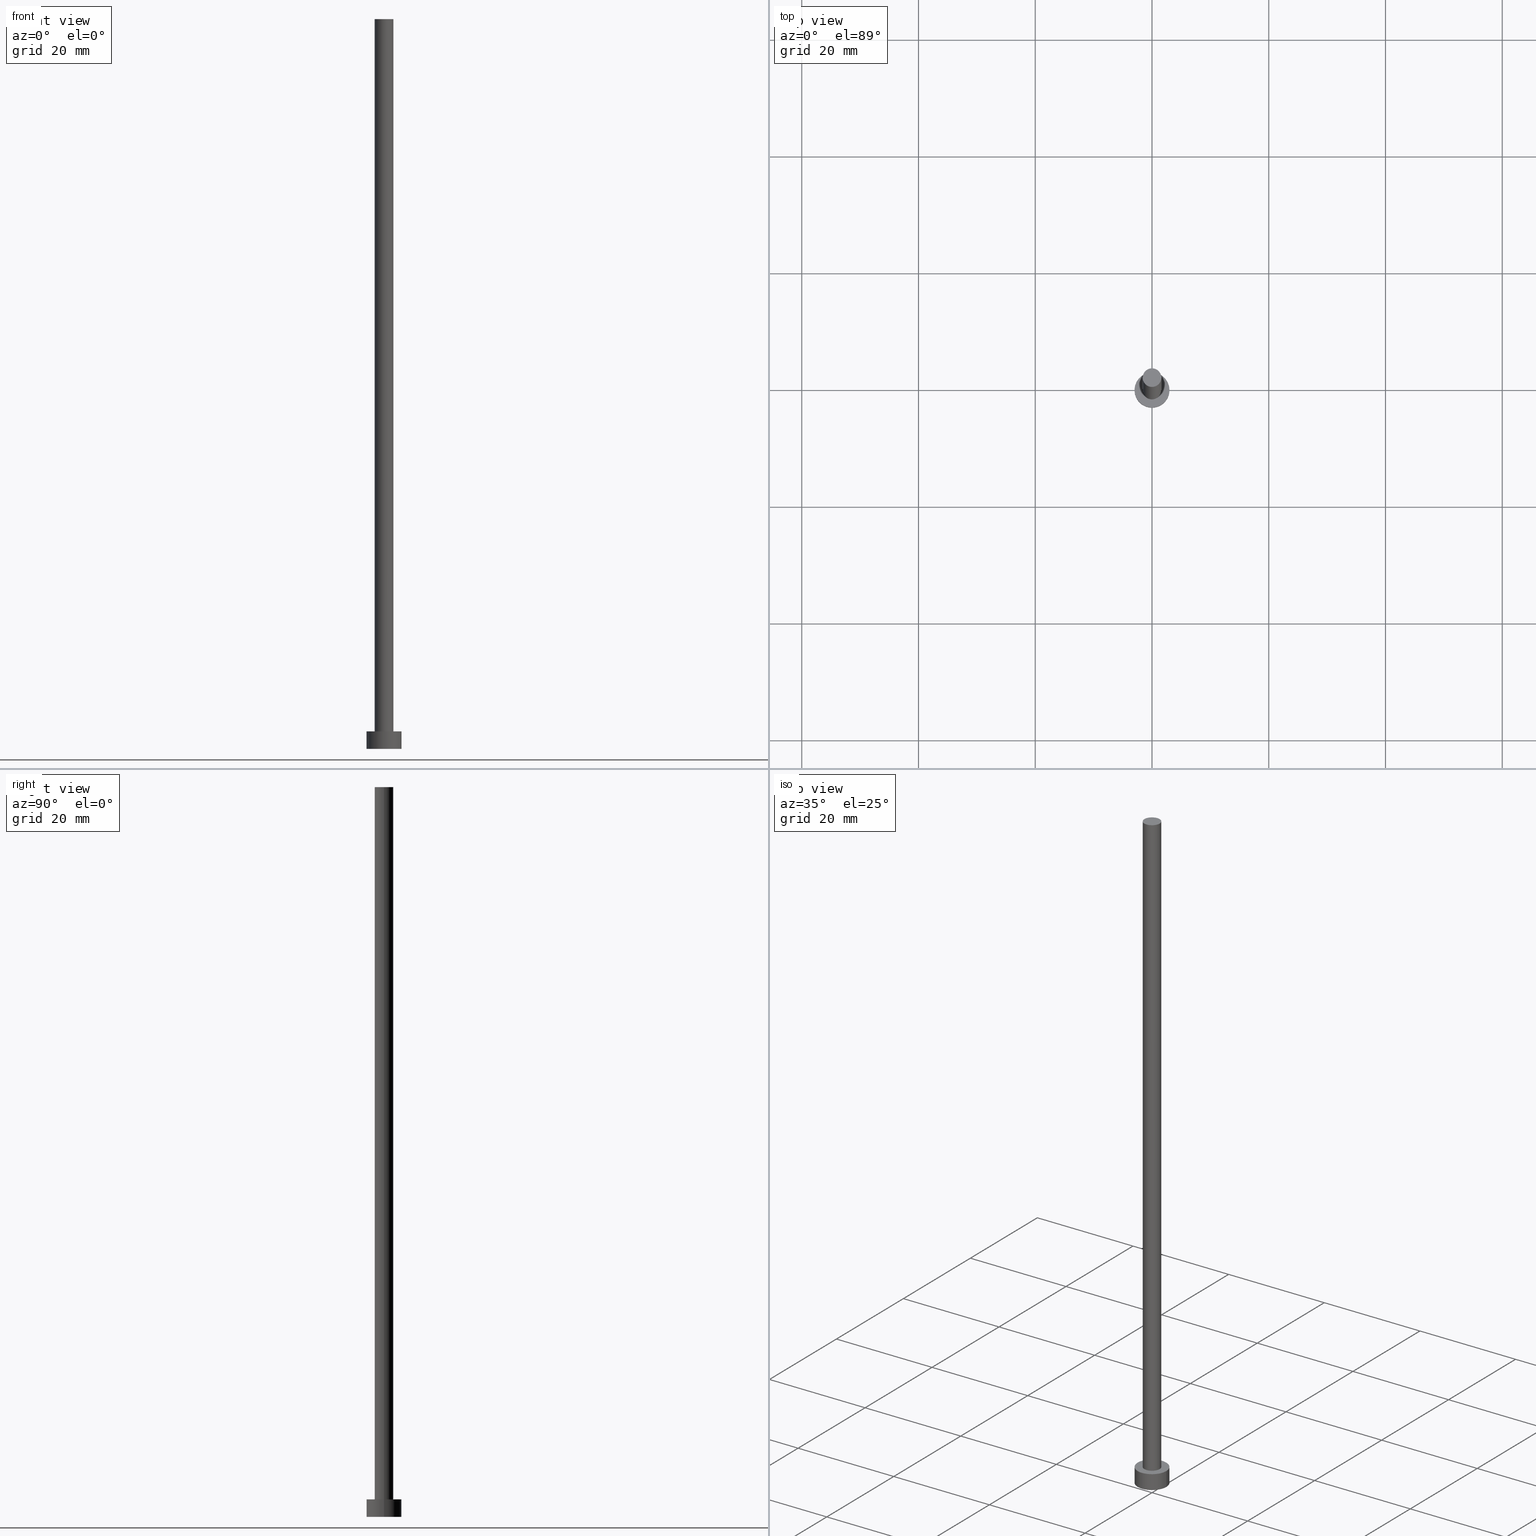
[diagram: canonical four-view strip — front | top / right | iso, engineering-drawing reading convention]
A machine part, canonical four-view strip (front | top / right | iso — engineering-drawing reading convention). The complete STEP part file that produces these views, byte-faithful:
ISO-10303-21;
HEADER;
FILE_DESCRIPTION (( 'STEP AP203' ),
    '1' );
FILE_NAME ('6691.STEP',
    '2023-02-13T14:25:49',
    ( '' ),
    ( '' ),
    'SwSTEP 2.0',
    'SolidWorks 2019',
    '' );
FILE_SCHEMA (( 'CONFIG_CONTROL_DESIGN' ));
ENDSEC;

DATA;
#1 = ADVANCED_FACE ( 'NONE', ( #181 ), #108, .T. ) ;
#2 = DIRECTION ( 'NONE',  ( 0.000000000000000000, 0.000000000000000000, 1.000000000000000000 ) ) ;
#3 = CIRCLE ( 'NONE', #38, 1.600000000000000089 ) ;
#4 = CARTESIAN_POINT ( 'NONE',  ( 1.600000000000000089, 1.959434878635764737E-16, 3.000000000000000000 ) ) ;
#5 = DATE_TIME_ROLE ( 'creation_date' ) ;
#6 = PERSON_AND_ORGANIZATION ( #99, #244 ) ;
#7 = APPLICATION_CONTEXT ( 'configuration controlled 3d designs of mechanical parts and assemblies' ) ;
#8 = VERTEX_POINT ( 'NONE', #4 ) ;
#9 = CARTESIAN_POINT ( 'NONE',  ( 0.000000000000000000, 0.000000000000000000, 3.000000000000000000 ) ) ;
#10 = DIRECTION ( 'NONE',  ( 1.000000000000000000, 0.000000000000000000, 0.000000000000000000 ) ) ;
#11 = AXIS2_PLACEMENT_3D ( 'NONE', #219, #122, #198 ) ;
#12 = LOCAL_TIME ( 15, 25, 49.00000000000000000, #141 ) ;
#13 = EDGE_CURVE ( 'NONE', #76, #68, #164, .T. ) ;
#14 = ORIENTED_EDGE ( 'NONE', *, *, #199, .F. ) ;
#15 = ORIENTED_EDGE ( 'NONE', *, *, #157, .T. ) ;
#16 = VECTOR ( 'NONE', #116, 1000.000000000000000 ) ;
#17 = APPLICATION_PROTOCOL_DEFINITION ( 'international standard', 'config_control_design', 1994, #85 ) ;
#18 = ORIENTED_EDGE ( 'NONE', *, *, #109, .F. ) ;
#19 = DIRECTION ( 'NONE',  ( -0.000000000000000000, -0.000000000000000000, -1.000000000000000000 ) ) ;
#20 = ORIENTED_EDGE ( 'NONE', *, *, #103, .F. ) ;
#21 = CIRCLE ( 'NONE', #195, 3.000000000000000444 ) ;
#22 = APPROVAL ( #87, 'NEUR�EN�' ) ;
#23 = PERSON_AND_ORGANIZATION ( #99, #244 ) ;
#24 = AXIS2_PLACEMENT_3D ( 'NONE', #83, #19, #25 ) ;
#25 = DIRECTION ( 'NONE',  ( -1.000000000000000000, 0.000000000000000000, 0.000000000000000000 ) ) ;
#26 = CALENDAR_DATE ( 2023, 13, 2 ) ;
#27 = PLANE ( 'NONE',  #167 ) ;
#28 = DIRECTION ( 'NONE',  ( 0.000000000000000000, 0.000000000000000000, 1.000000000000000000 ) ) ;
#29 = SHAPE_DEFINITION_REPRESENTATION ( #80, #161 ) ;
#30 = CARTESIAN_POINT ( 'NONE',  ( 0.000000000000000000, 0.000000000000000000, 3.000000000000000000 ) ) ;
#31 = ADVANCED_FACE ( 'NONE', ( #197 ), #37, .T. ) ;
#32 = LINE ( 'NONE', #206, #16 ) ;
#33 = CIRCLE ( 'NONE', #60, 3.000000000000000444 ) ;
#34 = FACE_OUTER_BOUND ( 'NONE', #120, .T. ) ;
#35 = EDGE_LOOP ( 'NONE', ( #79, #150 ) ) ;
#36 = AXIS2_PLACEMENT_3D ( 'NONE', #106, #182, #81 ) ;
#37 = CYLINDRICAL_SURFACE ( 'NONE', #11, 1.600000000000000089 ) ;
#38 = AXIS2_PLACEMENT_3D ( 'NONE', #49, #72, #245 ) ;
#39 = CIRCLE ( 'NONE', #192, 3.000000000000000444 ) ;
#40 = VECTOR ( 'NONE', #224, 1000.000000000000000 ) ;
#41 = PERSON_AND_ORGANIZATION_ROLE ( 'design_supplier' ) ;
#42 = DIRECTION ( 'NONE',  ( 0.000000000000000000, 0.000000000000000000, 1.000000000000000000 ) ) ;
#43 = CARTESIAN_POINT ( 'NONE',  ( 3.000000000000000444, 3.673940397442060361E-16, 0.000000000000000000 ) ) ;
#44 = CARTESIAN_POINT ( 'NONE',  ( 0.000000000000000000, 0.000000000000000000, 3.000000000000000000 ) ) ;
#45 = APPROVAL ( #88, 'NEUR�EN�' ) ;
#46 = DATE_TIME_ROLE ( 'classification_date' ) ;
#47 = CYLINDRICAL_SURFACE ( 'NONE', #95, 3.000000000000000444 ) ;
#48 = ADVANCED_FACE ( 'NONE', ( #184 ), #214, .T. ) ;
#49 = CARTESIAN_POINT ( 'NONE',  ( 0.000000000000000000, 0.000000000000000000, 125.0000000000000000 ) ) ;
#50 = AXIS2_PLACEMENT_3D ( 'NONE', #30, #63, #163 ) ;
#51 = CC_DESIGN_PERSON_AND_ORGANIZATION_ASSIGNMENT ( #236, #139, ( #235 ) ) ;
#52 = UNCERTAINTY_MEASURE_WITH_UNIT (LENGTH_MEASURE( 1.000000000000000082E-05 ), #174, 'distance_accuracy_value', 'NONE');
#53 = ADVANCED_FACE ( 'NONE', ( #158 ), #57, .F. ) ;
#54 = APPROVAL_PERSON_ORGANIZATION ( #86, #45, #166 ) ;
#55 = SECURITY_CLASSIFICATION ( '', '', #89 ) ;
#56 = LINE ( 'NONE', #138, #179 ) ;
#57 = PLANE ( 'NONE',  #213 ) ;
#58 = DIRECTION ( 'NONE',  ( 1.000000000000000000, 0.000000000000000000, 0.000000000000000000 ) ) ;
#59 = APPROVAL_DATE_TIME ( #187, #132 ) ;
#60 = AXIS2_PLACEMENT_3D ( 'NONE', #44, #42, #168 ) ;
#61 = CARTESIAN_POINT ( 'NONE',  ( 0.000000000000000000, 0.000000000000000000, 3.000000000000000000 ) ) ;
#62 = COORDINATED_UNIVERSAL_TIME_OFFSET ( 1, 0, .AHEAD. ) ;
#63 = DIRECTION ( 'NONE',  ( 0.000000000000000000, 0.000000000000000000, 1.000000000000000000 ) ) ;
#64 = APPROVAL_ROLE ( '' ) ;
#65 = CC_DESIGN_DATE_AND_TIME_ASSIGNMENT ( #221, #46, ( #55 ) ) ;
#66 = FACE_OUTER_BOUND ( 'NONE', #119, .T. ) ;
#67 = APPROVAL_PERSON_ORGANIZATION ( #90, #132, #64 ) ;
#68 = VERTEX_POINT ( 'NONE', #232 ) ;
#69 = PRODUCT_RELATED_PRODUCT_CATEGORY ( 'detail', '', ( #169 ) ) ;
#70 = CARTESIAN_POINT ( 'NONE',  ( -3.000000000000000444, 0.000000000000000000, 3.000000000000000000 ) ) ;
#71 = MECHANICAL_CONTEXT ( 'NONE', #85, 'mechanical' ) ;
#72 = DIRECTION ( 'NONE',  ( 0.000000000000000000, 0.000000000000000000, 1.000000000000000000 ) ) ;
#73 = EDGE_CURVE ( 'NONE', #76, #107, #56, .T. ) ;
#74 =( NAMED_UNIT ( * ) SI_UNIT ( $, .STERADIAN. ) SOLID_ANGLE_UNIT ( ) );
#75 = ORIENTED_EDGE ( 'NONE', *, *, #13, .F. ) ;
#76 = VERTEX_POINT ( 'NONE', #237 ) ;
#77 = AXIS2_PLACEMENT_3D ( 'NONE', #137, #212, #156 ) ;
#78 = VERTEX_POINT ( 'NONE', #242 ) ;
#79 = ORIENTED_EDGE ( 'NONE', *, *, #100, .F. ) ;
#80 = PRODUCT_DEFINITION_SHAPE ( 'NONE', 'NONE',  #248 ) ;
#81 = DIRECTION ( 'NONE',  ( 1.000000000000000000, 0.000000000000000000, 0.000000000000000000 ) ) ;
#82 = EDGE_LOOP ( 'NONE', ( #178, #194, #153, #255 ) ) ;
#83 = CARTESIAN_POINT ( 'NONE',  ( 0.000000000000000000, 0.000000000000000000, 3.000000000000000000 ) ) ;
#84 = DATE_AND_TIME ( #26, #12 ) ;
#85 = APPLICATION_CONTEXT ( 'configuration controlled 3d designs of mechanical parts and assemblies' ) ;
#86 = PERSON_AND_ORGANIZATION ( #99, #244 ) ;
#87 = APPROVAL_STATUS ( 'not_yet_approved' ) ;
#88 = APPROVAL_STATUS ( 'not_yet_approved' ) ;
#89 = SECURITY_CLASSIFICATION_LEVEL ( 'unclassified' ) ;
#90 = PERSON_AND_ORGANIZATION ( #99, #244 ) ;
#91 = DIRECTION ( 'NONE',  ( 1.000000000000000000, 0.000000000000000000, -0.000000000000000000 ) ) ;
#92 = EDGE_CURVE ( 'NONE', #121, #78, #112, .T. ) ;
#93 = DIRECTION ( 'NONE',  ( -0.000000000000000000, -0.000000000000000000, -1.000000000000000000 ) ) ;
#94 = ADVANCED_FACE ( 'NONE', ( #66 ), #47, .T. ) ;
#95 = AXIS2_PLACEMENT_3D ( 'NONE', #9, #147, #189 ) ;
#96 = AXIS2_PLACEMENT_3D ( 'NONE', #203, #205, #140 ) ;
#97 = CC_DESIGN_APPROVAL ( #45, ( #235 ) ) ;
#98 = ORIENTED_EDGE ( 'NONE', *, *, #103, .T. ) ;
#99 = PERSON ( 'NEUR�EN�', 'NEUR�EN�', 'NEUR�EN�', ('NEUR�EN�'), ('NEUR�EN�'), ('NEUR�EN�') ) ;
#100 = EDGE_CURVE ( 'NONE', #78, #188, #39, .T. ) ;
#101 = ORIENTED_EDGE ( 'NONE', *, *, #148, .T. ) ;
#102 = LOCAL_TIME ( 15, 25, 49.00000000000000000, #218 ) ;
#103 = EDGE_CURVE ( 'NONE', #230, #188, #171, .T. ) ;
#104 = ORIENTED_EDGE ( 'NONE', *, *, #183, .F. ) ;
#105 = CARTESIAN_POINT ( 'NONE',  ( 0.000000000000000000, 0.000000000000000000, 0.000000000000000000 ) ) ;
#106 = CARTESIAN_POINT ( 'NONE',  ( 0.000000000000000000, 0.000000000000000000, 0.000000000000000000 ) ) ;
#107 = VERTEX_POINT ( 'NONE', #222 ) ;
#108 = CYLINDRICAL_SURFACE ( 'NONE', #77, 1.600000000000000089 ) ;
#109 = EDGE_CURVE ( 'NONE', #121, #230, #33, .T. ) ;
#110 = COORDINATED_UNIVERSAL_TIME_OFFSET ( 1, 0, .AHEAD. ) ;
#111 = CC_DESIGN_APPROVAL ( #132, ( #248 ) ) ;
#112 = LINE ( 'NONE', #70, #40 ) ;
#113 = CALENDAR_DATE ( 2023, 13, 2 ) ;
#114 = PERSON_AND_ORGANIZATION ( #99, #244 ) ;
#115 = DIRECTION ( 'NONE',  ( 1.000000000000000000, 0.000000000000000000, 0.000000000000000000 ) ) ;
#116 = DIRECTION ( 'NONE',  ( -0.000000000000000000, -0.000000000000000000, -1.000000000000000000 ) ) ;
#117 = CIRCLE ( 'NONE', #96, 1.600000000000000089 ) ;
#118 = CLOSED_SHELL ( 'NONE', ( #31, #94, #48, #208, #53, #1, #249 ) ) ;
#119 = EDGE_LOOP ( 'NONE', ( #14, #98, #101, #216 ) ) ;
#120 = EDGE_LOOP ( 'NONE', ( #234, #15 ) ) ;
#121 = VERTEX_POINT ( 'NONE', #129 ) ;
#122 = DIRECTION ( 'NONE',  ( -0.000000000000000000, -0.000000000000000000, -1.000000000000000000 ) ) ;
#123 = EDGE_LOOP ( 'NONE', ( #104, #136 ) ) ;
#124 = APPROVAL_STATUS ( 'not_yet_approved' ) ;
#125 = ORIENTED_EDGE ( 'NONE', *, *, #109, .T. ) ;
#126 = APPLICATION_PROTOCOL_DEFINITION ( 'international standard', 'config_control_design', 1994, #7 ) ;
#127 = FACE_BOUND ( 'NONE', #123, .T. ) ;
#128 = COORDINATED_UNIVERSAL_TIME_OFFSET ( 1, 0, .AHEAD. ) ;
#129 = CARTESIAN_POINT ( 'NONE',  ( -3.000000000000000444, 0.000000000000000000, 3.000000000000000000 ) ) ;
#130 = PERSON_AND_ORGANIZATION_ROLE ( 'design_owner' ) ;
#131 = DIRECTION ( 'NONE',  ( 0.000000000000000000, 0.000000000000000000, 1.000000000000000000 ) ) ;
#132 = APPROVAL ( #124, 'NEUR�EN�' ) ;
#133 = AXIS2_PLACEMENT_3D ( 'NONE', #240, #134, #10 ) ;
#134 = DIRECTION ( 'NONE',  ( 0.000000000000000000, 0.000000000000000000, 1.000000000000000000 ) ) ;
#135 = CC_DESIGN_PERSON_AND_ORGANIZATION_ASSIGNMENT ( #114, #145, ( #248 ) ) ;
#136 = ORIENTED_EDGE ( 'NONE', *, *, #154, .F. ) ;
#137 = CARTESIAN_POINT ( 'NONE',  ( 0.000000000000000000, 0.000000000000000000, 125.0000000000000000 ) ) ;
#138 = CARTESIAN_POINT ( 'NONE',  ( -1.600000000000000089, 0.000000000000000000, 125.0000000000000000 ) ) ;
#139 = PERSON_AND_ORGANIZATION_ROLE ( 'creator' ) ;
#140 = DIRECTION ( 'NONE',  ( 1.000000000000000000, 0.000000000000000000, 0.000000000000000000 ) ) ;
#141 = COORDINATED_UNIVERSAL_TIME_OFFSET ( 1, 0, .AHEAD. ) ;
#142 = ORIENTED_EDGE ( 'NONE', *, *, #199, .T. ) ;
#143 = CALENDAR_DATE ( 2023, 13, 2 ) ;
#144 = DIRECTION ( 'NONE',  ( 0.000000000000000000, 0.000000000000000000, 1.000000000000000000 ) ) ;
#145 = PERSON_AND_ORGANIZATION_ROLE ( 'creator' ) ;
#146 = DIRECTION ( 'NONE',  ( -0.000000000000000000, -0.000000000000000000, -1.000000000000000000 ) ) ;
#147 = DIRECTION ( 'NONE',  ( -0.000000000000000000, -0.000000000000000000, -1.000000000000000000 ) ) ;
#148 = EDGE_CURVE ( 'NONE', #188, #78, #207, .T. ) ;
#149 = DIRECTION ( 'NONE',  ( 0.000000000000000000, 0.000000000000000000, 1.000000000000000000 ) ) ;
#150 = ORIENTED_EDGE ( 'NONE', *, *, #148, .F. ) ;
#151 = MANIFOLD_SOLID_BREP ( 'P�idat vysunut�m3', #118 ) ;
#152 = CARTESIAN_POINT ( 'NONE',  ( 0.000000000000000000, 0.000000000000000000, 125.0000000000000000 ) ) ;
#153 = ORIENTED_EDGE ( 'NONE', *, *, #154, .T. ) ;
#154 = EDGE_CURVE ( 'NONE', #8, #107, #117, .T. ) ;
#155 = DIRECTION ( 'NONE',  ( 1.000000000000000000, 0.000000000000000000, -0.000000000000000000 ) ) ;
#156 = DIRECTION ( 'NONE',  ( -1.000000000000000000, 0.000000000000000000, 0.000000000000000000 ) ) ;
#157 = EDGE_CURVE ( 'NONE', #68, #76, #3, .T. ) ;
#158 = FACE_OUTER_BOUND ( 'NONE', #35, .T. ) ;
#159 = APPROVAL_ROLE ( '' ) ;
#160 = CIRCLE ( 'NONE', #50, 1.600000000000000089 ) ;
#161 = ADVANCED_BREP_SHAPE_REPRESENTATION ( '6691', ( #151, #36 ), #250 ) ;
#162 = APPROVAL_DATE_TIME ( #185, #45 ) ;
#163 = DIRECTION ( 'NONE',  ( 1.000000000000000000, 0.000000000000000000, 0.000000000000000000 ) ) ;
#164 = CIRCLE ( 'NONE', #246, 1.600000000000000089 ) ;
#165 = PERSON_AND_ORGANIZATION ( #99, #244 ) ;
#166 = APPROVAL_ROLE ( '' ) ;
#167 = AXIS2_PLACEMENT_3D ( 'NONE', #201, #28, #91 ) ;
#168 = DIRECTION ( 'NONE',  ( 1.000000000000000000, 0.000000000000000000, 0.000000000000000000 ) ) ;
#169 = PRODUCT ( '6691', '6691', '', ( #71 ) ) ;
#170 = EDGE_CURVE ( 'NONE', #68, #8, #32, .T. ) ;
#171 = LINE ( 'NONE', #220, #251 ) ;
#172 = PLANE ( 'NONE',  #191 ) ;
#173 = CARTESIAN_POINT ( 'NONE',  ( 3.000000000000000444, 3.673940397442060361E-16, 3.000000000000000000 ) ) ;
#174 =( LENGTH_UNIT ( ) NAMED_UNIT ( * ) SI_UNIT ( .MILLI., .METRE. ) );
#175 = CC_DESIGN_PERSON_AND_ORGANIZATION_ASSIGNMENT ( #227, #130, ( #169 ) ) ;
#176 = DIRECTION ( 'NONE',  ( 1.000000000000000000, 0.000000000000000000, -0.000000000000000000 ) ) ;
#177 = CC_DESIGN_SECURITY_CLASSIFICATION ( #55, ( #235 ) ) ;
#178 = ORIENTED_EDGE ( 'NONE', *, *, #157, .F. ) ;
#179 = VECTOR ( 'NONE', #93, 1000.000000000000000 ) ;
#180 = ORIENTED_EDGE ( 'NONE', *, *, #100, .T. ) ;
#181 = FACE_OUTER_BOUND ( 'NONE', #238, .T. ) ;
#182 = DIRECTION ( 'NONE',  ( 0.000000000000000000, 0.000000000000000000, 1.000000000000000000 ) ) ;
#183 = EDGE_CURVE ( 'NONE', #107, #8, #160, .T. ) ;
#184 = FACE_OUTER_BOUND ( 'NONE', #210, .T. ) ;
#185 = DATE_AND_TIME ( #190, #217 ) ;
#186 = LOCAL_TIME ( 15, 25, 49.00000000000000000, #128 ) ;
#187 = DATE_AND_TIME ( #143, #102 ) ;
#188 = VERTEX_POINT ( 'NONE', #43 ) ;
#189 = DIRECTION ( 'NONE',  ( -1.000000000000000000, 0.000000000000000000, 0.000000000000000000 ) ) ;
#190 = CALENDAR_DATE ( 2023, 13, 2 ) ;
#191 = AXIS2_PLACEMENT_3D ( 'NONE', #152, #149, #176 ) ;
#192 = AXIS2_PLACEMENT_3D ( 'NONE', #225, #131, #247 ) ;
#193 = DESIGN_CONTEXT ( 'detailed design', #7, 'design' ) ;
#194 = ORIENTED_EDGE ( 'NONE', *, *, #170, .T. ) ;
#195 = AXIS2_PLACEMENT_3D ( 'NONE', #61, #144, #115 ) ;
#196 = EDGE_LOOP ( 'NONE', ( #125, #142 ) ) ;
#197 = FACE_OUTER_BOUND ( 'NONE', #82, .T. ) ;
#198 = DIRECTION ( 'NONE',  ( -1.000000000000000000, 0.000000000000000000, 0.000000000000000000 ) ) ;
#199 = EDGE_CURVE ( 'NONE', #230, #121, #21, .T. ) ;
#200 = FACE_OUTER_BOUND ( 'NONE', #196, .T. ) ;
#201 = CARTESIAN_POINT ( 'NONE',  ( 0.000000000000000000, 0.000000000000000000, 3.000000000000000000 ) ) ;
#202 = CC_DESIGN_PERSON_AND_ORGANIZATION_ASSIGNMENT ( #165, #239, ( #55 ) ) ;
#203 = CARTESIAN_POINT ( 'NONE',  ( 0.000000000000000000, 0.000000000000000000, 3.000000000000000000 ) ) ;
#204 = DATE_AND_TIME ( #113, #186 ) ;
#205 = DIRECTION ( 'NONE',  ( 0.000000000000000000, 0.000000000000000000, 1.000000000000000000 ) ) ;
#206 = CARTESIAN_POINT ( 'NONE',  ( 1.600000000000000089, 1.959434878635764737E-16, 125.0000000000000000 ) ) ;
#207 = CIRCLE ( 'NONE', #133, 3.000000000000000444 ) ;
#208 = ADVANCED_FACE ( 'NONE', ( #127, #200 ), #27, .T. ) ;
#209 = CC_DESIGN_APPROVAL ( #22, ( #55 ) ) ;
#210 = EDGE_LOOP ( 'NONE', ( #20, #18, #243, #180 ) ) ;
#211 = ORIENTED_EDGE ( 'NONE', *, *, #170, .F. ) ;
#212 = DIRECTION ( 'NONE',  ( -0.000000000000000000, -0.000000000000000000, -1.000000000000000000 ) ) ;
#213 = AXIS2_PLACEMENT_3D ( 'NONE', #105, #2, #155 ) ;
#214 = CYLINDRICAL_SURFACE ( 'NONE', #24, 3.000000000000000444 ) ;
#215 = DIRECTION ( 'NONE',  ( 0.000000000000000000, 0.000000000000000000, 1.000000000000000000 ) ) ;
#216 = ORIENTED_EDGE ( 'NONE', *, *, #92, .F. ) ;
#217 = LOCAL_TIME ( 15, 25, 49.00000000000000000, #110 ) ;
#218 = COORDINATED_UNIVERSAL_TIME_OFFSET ( 1, 0, .AHEAD. ) ;
#219 = CARTESIAN_POINT ( 'NONE',  ( 0.000000000000000000, 0.000000000000000000, 125.0000000000000000 ) ) ;
#220 = CARTESIAN_POINT ( 'NONE',  ( 3.000000000000000444, 3.673940397442060361E-16, 3.000000000000000000 ) ) ;
#221 = DATE_AND_TIME ( #241, #231 ) ;
#222 = CARTESIAN_POINT ( 'NONE',  ( -1.600000000000000089, 0.000000000000000000, 3.000000000000000000 ) ) ;
#223 = APPROVAL_DATE_TIME ( #84, #22 ) ;
#224 = DIRECTION ( 'NONE',  ( -0.000000000000000000, -0.000000000000000000, -1.000000000000000000 ) ) ;
#225 = CARTESIAN_POINT ( 'NONE',  ( 0.000000000000000000, 0.000000000000000000, 0.000000000000000000 ) ) ;
#226 = CC_DESIGN_PERSON_AND_ORGANIZATION_ASSIGNMENT ( #6, #41, ( #235 ) ) ;
#227 = PERSON_AND_ORGANIZATION ( #99, #244 ) ;
#228 = APPROVAL_PERSON_ORGANIZATION ( #23, #22, #159 ) ;
#229 = ORIENTED_EDGE ( 'NONE', *, *, #183, .T. ) ;
#230 = VERTEX_POINT ( 'NONE', #173 ) ;
#231 = LOCAL_TIME ( 15, 25, 49.00000000000000000, #62 ) ;
#232 = CARTESIAN_POINT ( 'NONE',  ( 1.600000000000000089, 1.959434878635764737E-16, 125.0000000000000000 ) ) ;
#233 = CARTESIAN_POINT ( 'NONE',  ( 0.000000000000000000, 0.000000000000000000, 125.0000000000000000 ) ) ;
#234 = ORIENTED_EDGE ( 'NONE', *, *, #13, .T. ) ;
#235 = PRODUCT_DEFINITION_FORMATION_WITH_SPECIFIED_SOURCE ( 'LIBOVOLN�', '', #169, .NOT_KNOWN. ) ;
#236 = PERSON_AND_ORGANIZATION ( #99, #244 ) ;
#237 = CARTESIAN_POINT ( 'NONE',  ( -1.600000000000000089, 0.000000000000000000, 125.0000000000000000 ) ) ;
#238 = EDGE_LOOP ( 'NONE', ( #211, #75, #254, #229 ) ) ;
#239 = PERSON_AND_ORGANIZATION_ROLE ( 'classification_officer' ) ;
#240 = CARTESIAN_POINT ( 'NONE',  ( 0.000000000000000000, 0.000000000000000000, 0.000000000000000000 ) ) ;
#241 = CALENDAR_DATE ( 2023, 13, 2 ) ;
#242 = CARTESIAN_POINT ( 'NONE',  ( -3.000000000000000444, 0.000000000000000000, 0.000000000000000000 ) ) ;
#243 = ORIENTED_EDGE ( 'NONE', *, *, #92, .T. ) ;
#244 = ORGANIZATION ( 'NEUR�EN�', 'NEUR�EN�', '' ) ;
#245 = DIRECTION ( 'NONE',  ( 1.000000000000000000, 0.000000000000000000, 0.000000000000000000 ) ) ;
#246 = AXIS2_PLACEMENT_3D ( 'NONE', #233, #215, #58 ) ;
#247 = DIRECTION ( 'NONE',  ( 1.000000000000000000, 0.000000000000000000, 0.000000000000000000 ) ) ;
#248 = PRODUCT_DEFINITION ( 'NEZN�M�', '', #235, #193 ) ;
#249 = ADVANCED_FACE ( 'NONE', ( #34 ), #172, .T. ) ;
#250 =( GEOMETRIC_REPRESENTATION_CONTEXT ( 3 ) GLOBAL_UNCERTAINTY_ASSIGNED_CONTEXT ( ( #52 ) ) GLOBAL_UNIT_ASSIGNED_CONTEXT ( ( #174, #253, #74 ) ) REPRESENTATION_CONTEXT ( 'NONE', 'WORKASPACE' ) );
#251 = VECTOR ( 'NONE', #146, 1000.000000000000000 ) ;
#252 = CC_DESIGN_DATE_AND_TIME_ASSIGNMENT ( #204, #5, ( #248 ) ) ;
#253 =( NAMED_UNIT ( * ) PLANE_ANGLE_UNIT ( ) SI_UNIT ( $, .RADIAN. ) );
#254 = ORIENTED_EDGE ( 'NONE', *, *, #73, .T. ) ;
#255 = ORIENTED_EDGE ( 'NONE', *, *, #73, .F. ) ;
ENDSEC;
END-ISO-10303-21;
